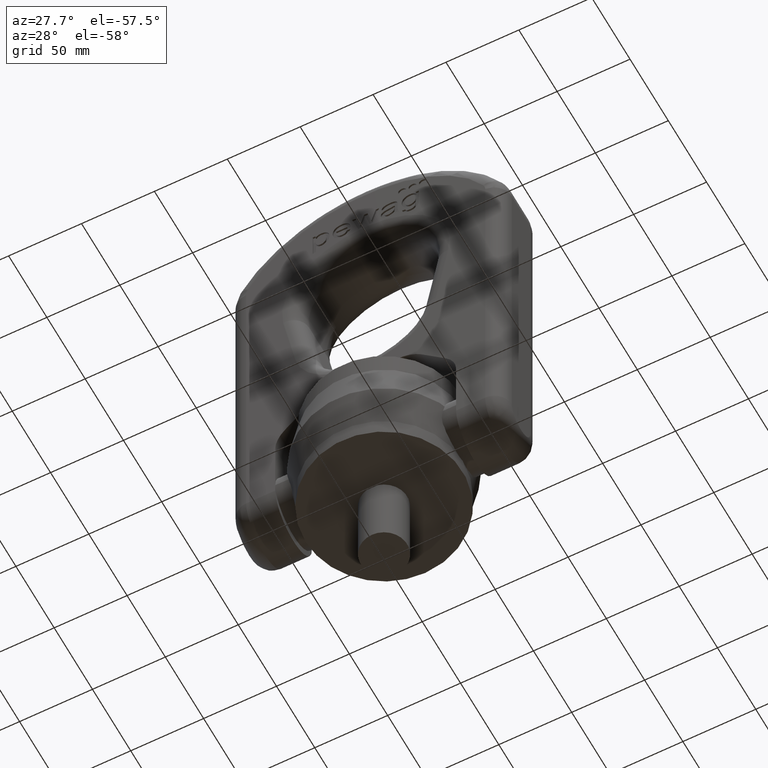
[diagram: clean part render]
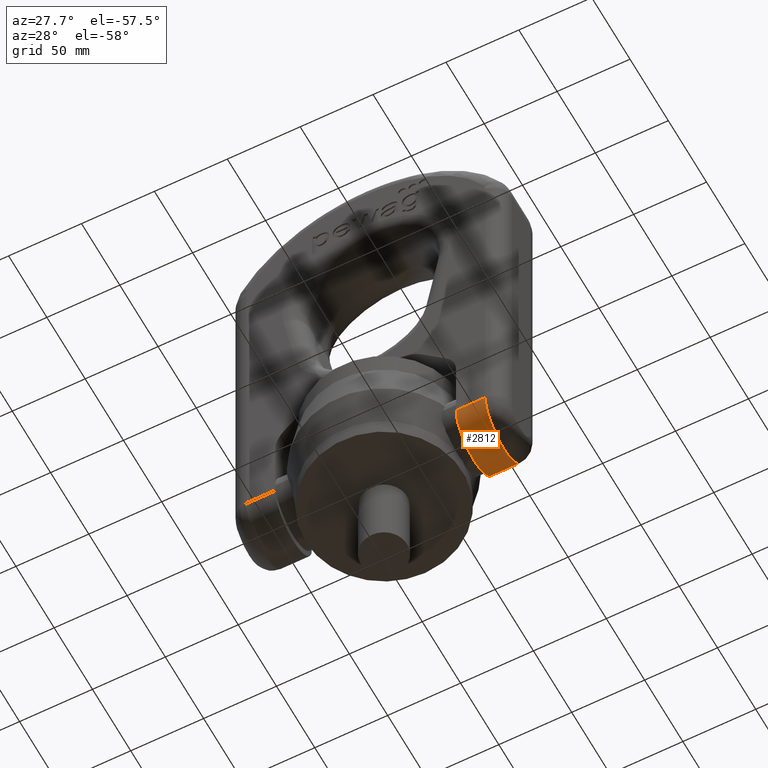
[diagram: same view with one face highlighted and labeled with its STEP entity id]
A machine part, auxiliary view. The second image highlights one B-rep face of the part: STEP entity #2812.
In plain terms, the highlighted cylindrical surface (partial cylindrical patch) has radius 24 mm, axis along (-1, 0, 0).
Its self-contained STEP definition (entity closure, byte-faithful):
#1772=LINE('',#7063,#2080);
#1773=LINE('',#7067,#2081);
#2080=VECTOR('',#6187,1.);
#2081=VECTOR('',#6190,1.);
#2454=FACE_OUTER_BOUND('',#3172,.T.);
#2812=ADVANCED_FACE('',(#2454),#3044,.T.);
#3044=CYLINDRICAL_SURFACE('',#5868,23.9999999999999);
#3172=EDGE_LOOP('',(#3533,#3534,#3535,#3536));
#3533=ORIENTED_EDGE('',*,*,#5173,.F.);
#3534=ORIENTED_EDGE('',*,*,#5174,.T.);
#3535=ORIENTED_EDGE('',*,*,#5175,.F.);
#3536=ORIENTED_EDGE('',*,*,#5168,.T.);
#4734=VERTEX_POINT('',#7047);
#4736=VERTEX_POINT('',#7051);
#4741=VERTEX_POINT('',#7064);
#4742=VERTEX_POINT('',#7066);
#5168=EDGE_CURVE('',#4734,#4736,#5759,.T.);
#5173=EDGE_CURVE('',#4741,#4736,#1772,.T.);
#5174=EDGE_CURVE('',#4741,#4742,#5762,.T.);
#5175=EDGE_CURVE('',#4734,#4742,#1773,.T.);
#5759=CIRCLE('',#5862,23.9999999999999);
#5762=CIRCLE('',#5867,23.9999999999999);
#5862=AXIS2_PLACEMENT_3D('',#7052,#6175,#6176);
#5867=AXIS2_PLACEMENT_3D('',#7065,#6188,#6189);
#5868=AXIS2_PLACEMENT_3D('',#7068,#6191,#6192);
#6175=DIRECTION('',(1.,0.,2.39272203583008E-16));
#6176=DIRECTION('',(-2.89120579329469E-16,0.,1.));
#6187=DIRECTION('',(-1.,2.34291072916505E-15,1.16263381900573E-15));
#6188=DIRECTION('',(-1.,0.,-1.04738021191052E-16));
#6189=DIRECTION('',(0.,0.,1.));
#6190=DIRECTION('',(1.,0.,-1.16263381900573E-15));
#6191=DIRECTION('',(-1.,1.17186107153752E-15,1.16263381900573E-15));
#6192=DIRECTION('',(-1.15648231731788E-15,-1.,0.));
#7047=CARTESIAN_POINT('',(62.04,-24.,30.));
#7051=CARTESIAN_POINT('',(62.04,23.9999999999999,29.9999999999999));
#7052=CARTESIAN_POINT('',(62.04,-7.35696226161763E-14,29.9999999999999));
#7063=CARTESIAN_POINT('',(94.0000000000001,23.9999999999998,29.9999999999999));
#7064=CARTESIAN_POINT('',(82.,23.9999999999998,29.9999999999999));
#7065=CARTESIAN_POINT('',(82.,-9.69599696040653E-14,29.9999999999999));
#7066=CARTESIAN_POINT('',(82.,-24.,29.9999999999999));
#7067=CARTESIAN_POINT('',(94.0000000000001,-24.,29.9999999999999));
#7068=CARTESIAN_POINT('',(94.0000000000001,-1.11022302462516E-13,29.9999999999999));